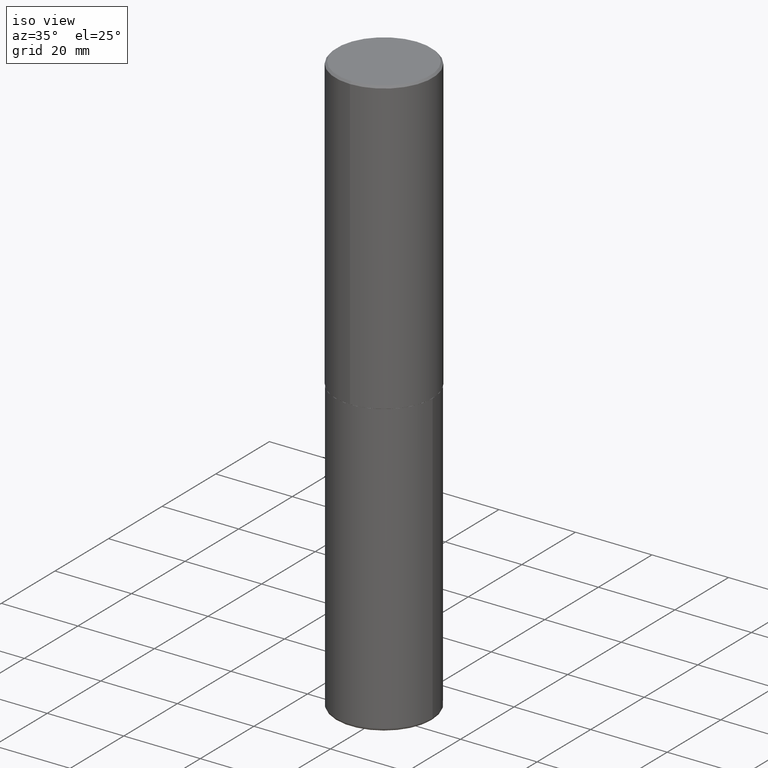
[diagram: clean part render]
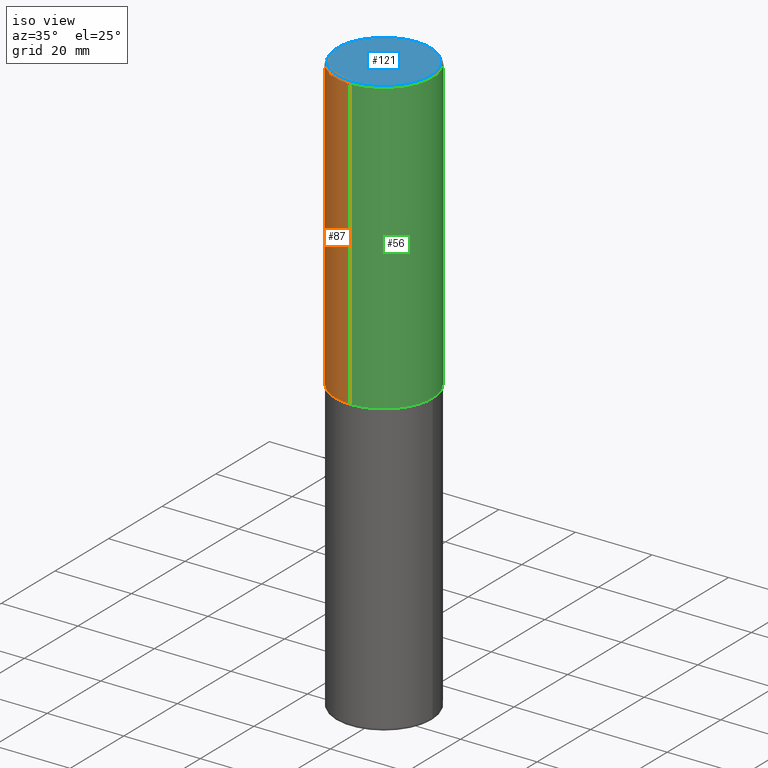
[diagram: same view with three faces highlighted in distinct colors, each labeled with its STEP entity id]
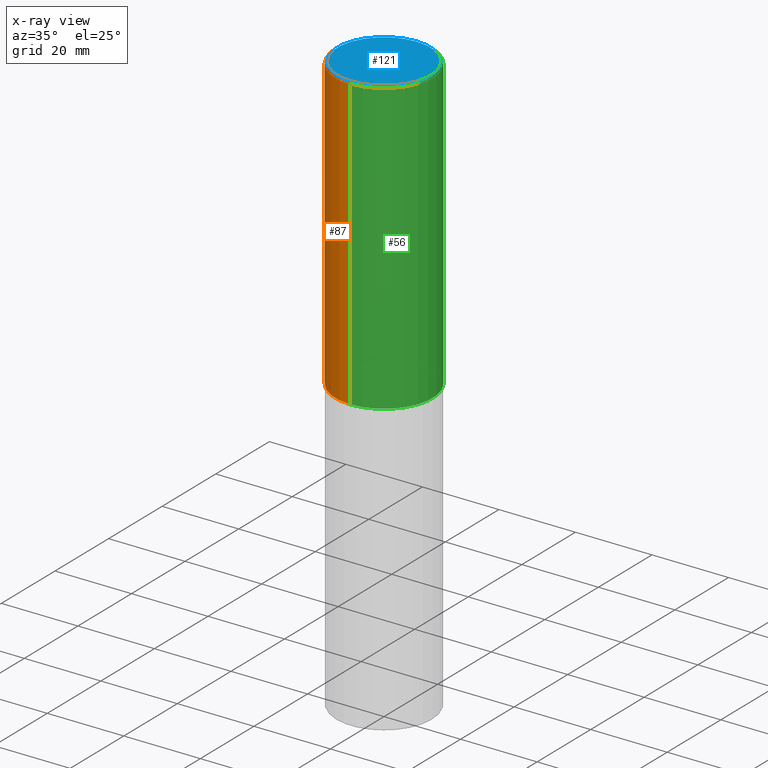
[diagram: x-ray of the same camera — body ghosted, the three highlighted faces saturated]
A machine part, iso view with three faces highlighted in distinct colors.
The next image is the same camera in x-ray (body ghosted, the three faces saturated) — at least one of them is partly hidden behind the body in this view.
Their STEP definitions:

[orange] entity #87 — the highlighted cylindrical surface (partial cylindrical patch) has radius 12.7 mm, axis along (-0, 0, 1).
#27 = EDGE_CURVE ( 'NONE', #339, #404, #408, .T. ) ;
#29 = DIRECTION ( 'NONE',  ( -2.444898033699711931E-29, 3.492298717528626385E-15, 1.000000000000000000 ) ) ;
#37 = CARTESIAN_POINT ( 'NONE',  ( -3.430248998885764992E-15, -0.5000000000000001110, -0.01999999999999835937 ) ) ;
#58 = EDGE_CURVE ( 'NONE', #237, #214, #188, .T. ) ;
#73 = ORIENTED_EDGE ( 'NONE', *, *, #276, .F. ) ;
#80 = ORIENTED_EDGE ( 'NONE', *, *, #27, .F. ) ;
#87 = ADVANCED_FACE ( 'NONE', ( #154 ), #288, .T. ) ;
#96 = EDGE_CURVE ( 'NONE', #339, #237, #305, .T. ) ;
#99 = DIRECTION ( 'NONE',  ( -2.444898033699712212E-29, 3.492298717528625990E-15, 1.000000000000000000 ) ) ;
#106 = EDGE_LOOP ( 'NONE', ( #80, #208, #169, #73 ) ) ;
#116 = AXIS2_PLACEMENT_3D ( 'NONE', #187, #251, #284 ) ;
#119 = DIRECTION ( 'NONE',  ( -6.982962677686265922E-15, -1.000000000000000000, 3.492298717528625990E-15 ) ) ;
#123 = DIRECTION ( 'NONE',  ( -2.444898033699711931E-29, 3.492298717528626385E-15, 1.000000000000000000 ) ) ;
#149 = DIRECTION ( 'NONE',  ( -2.444898033699712212E-29, 3.492298717528625990E-15, 1.000000000000000000 ) ) ;
#154 = FACE_OUTER_BOUND ( 'NONE', #106, .T. ) ;
#169 = ORIENTED_EDGE ( 'NONE', *, *, #58, .T. ) ;
#178 = CARTESIAN_POINT ( 'NONE',  ( 3.491481338843133355E-15, 0.4999999999999999445, -0.02000000000000185310 ) ) ;
#181 = CIRCLE ( 'NONE', #186, 0.5000000000000000000 ) ;
#186 = AXIS2_PLACEMENT_3D ( 'NONE', #411, #99, #324 ) ;
#187 = CARTESIAN_POINT ( 'NONE',  ( 7.332249203065438921E-29, -1.047340385386834930E-14, -2.999000000000000554 ) ) ;
#188 = LINE ( 'NONE', #322, #311 ) ;
#208 = ORIENTED_EDGE ( 'NONE', *, *, #96, .T. ) ;
#214 = VERTEX_POINT ( 'NONE', #37 ) ;
#216 = CARTESIAN_POINT ( 'NONE',  ( 0.000000000000000000, 0.000000000000000000, 0.000000000000000000 ) ) ;
#222 = CARTESIAN_POINT ( 'NONE',  ( 3.552713678800539584E-15, 0.4999999999999898970, -2.999000000000001886 ) ) ;
#237 = VERTEX_POINT ( 'NONE', #262 ) ;
#251 = DIRECTION ( 'NONE',  ( -2.444898033699712212E-29, 3.492298717528625990E-15, 1.000000000000000000 ) ) ;
#262 = CARTESIAN_POINT ( 'NONE',  ( -3.491481338843061569E-15, -0.5000000000000107692, -2.998999999999998778 ) ) ;
#276 = EDGE_CURVE ( 'NONE', #404, #214, #181, .T. ) ;
#284 = DIRECTION ( 'NONE',  ( -6.982962677686266711E-15, -1.000000000000000000, 3.278217592397114284E-15 ) ) ;
#288 = CYLINDRICAL_SURFACE ( 'NONE', #370, 0.5000000000000001110 ) ;
#305 = CIRCLE ( 'NONE', #116, 0.5000000000000002220 ) ;
#311 = VECTOR ( 'NONE', #29, 39.37007874015748143 ) ;
#320 = CARTESIAN_POINT ( 'NONE',  ( 3.552713678800501718E-15, 0.5000000000000001110, -1.746149358764313390E-15 ) ) ;
#322 = CARTESIAN_POINT ( 'NONE',  ( -3.491481338843133750E-15, -0.5000000000000001110, 1.746149358764313390E-15 ) ) ;
#324 = DIRECTION ( 'NONE',  ( -6.982962677686265922E-15, -1.000000000000000000, 3.491643216902136408E-15 ) ) ;
#339 = VERTEX_POINT ( 'NONE', #222 ) ;
#370 = AXIS2_PLACEMENT_3D ( 'NONE', #216, #149, #119 ) ;
#376 = VECTOR ( 'NONE', #123, 39.37007874015748143 ) ;
#404 = VERTEX_POINT ( 'NONE', #178 ) ;
#408 = LINE ( 'NONE', #320, #376 ) ;
#411 = CARTESIAN_POINT ( 'NONE',  ( 4.889796067399450837E-31, -6.984597435057287381E-17, -0.02000000000000010797 ) ) ;

[blue] entity #121 — the highlighted planar face has unit normal (0, -0, -1).
#21 = DIRECTION ( 'NONE',  ( 6.982962677686265922E-15, 1.000000000000000000, -3.492298717528626385E-15 ) ) ;
#33 = DIRECTION ( 'NONE',  ( -6.982962677686265922E-15, -1.000000000000000000, 3.492298717528625990E-15 ) ) ;
#50 = EDGE_CURVE ( 'NONE', #136, #209, #231, .T. ) ;
#51 = FACE_OUTER_BOUND ( 'NONE', #78, .T. ) ;
#57 = DIRECTION ( 'NONE',  ( 2.444898033699711371E-29, -3.492298717528626385E-15, -1.000000000000000000 ) ) ;
#78 = EDGE_LOOP ( 'NONE', ( #240, #310 ) ) ;
#82 = DIRECTION ( 'NONE',  ( -2.444898033699712212E-29, 3.492298717528625990E-15, 1.000000000000000000 ) ) ;
#121 = ADVANCED_FACE ( 'NONE', ( #51 ), #183, .F. ) ;
#136 = VERTEX_POINT ( 'NONE', #302 ) ;
#144 = CIRCLE ( 'NONE', #306, 0.4799999999999999267 ) ;
#182 = DIRECTION ( 'NONE',  ( -6.982962677686265922E-15, -1.000000000000000000, 3.492298717528625990E-15 ) ) ;
#183 = PLANE ( 'NONE',  #224 ) ;
#196 = CARTESIAN_POINT ( 'NONE',  ( -2.514251026725007597E-45, 3.591362713352002573E-31, 1.028366415314403880E-16 ) ) ;
#209 = VERTEX_POINT ( 'NONE', #264 ) ;
#224 = AXIS2_PLACEMENT_3D ( 'NONE', #315, #57, #21 ) ;
#231 = CIRCLE ( 'NONE', #316, 0.4799999999999999267 ) ;
#240 = ORIENTED_EDGE ( 'NONE', *, *, #349, .T. ) ;
#264 = CARTESIAN_POINT ( 'NONE',  ( 3.421651712066270057E-15, 0.4799999999999999267, -1.573466742882299844E-15 ) ) ;
#302 = CARTESIAN_POINT ( 'NONE',  ( -3.361644018908049661E-15, -0.4799999999999999267, 1.779140025945180744E-15 ) ) ;
#306 = AXIS2_PLACEMENT_3D ( 'NONE', #196, #328, #33 ) ;
#310 = ORIENTED_EDGE ( 'NONE', *, *, #50, .T. ) ;
#315 = CARTESIAN_POINT ( 'NONE',  ( 3.351822085289407153E-15, 0.4799999999999999267, -1.624885063648019971E-15 ) ) ;
#316 = AXIS2_PLACEMENT_3D ( 'NONE', #317, #82, #182 ) ;
#317 = CARTESIAN_POINT ( 'NONE',  ( -2.514251026725007597E-45, 3.591362713352002573E-31, 1.028366415314403880E-16 ) ) ;
#328 = DIRECTION ( 'NONE',  ( -2.444898033699712212E-29, 3.492298717528625990E-15, 1.000000000000000000 ) ) ;
#349 = EDGE_CURVE ( 'NONE', #209, #136, #144, .T. ) ;

[green] entity #56 — the highlighted cylindrical surface (partial cylindrical patch) has radius 12.7 mm, axis along (-0, 0, 1).
#13 = CARTESIAN_POINT ( 'NONE',  ( 4.889796067399450837E-31, -6.984597435057287381E-17, -0.02000000000000010797 ) ) ;
#15 = CIRCLE ( 'NONE', #111, 0.5000000000000002220 ) ;
#24 = CYLINDRICAL_SURFACE ( 'NONE', #67, 0.5000000000000001110 ) ;
#27 = EDGE_CURVE ( 'NONE', #339, #404, #408, .T. ) ;
#29 = DIRECTION ( 'NONE',  ( -2.444898033699711931E-29, 3.492298717528626385E-15, 1.000000000000000000 ) ) ;
#34 = EDGE_CURVE ( 'NONE', #237, #339, #15, .T. ) ;
#37 = CARTESIAN_POINT ( 'NONE',  ( -3.430248998885764992E-15, -0.5000000000000001110, -0.01999999999999835937 ) ) ;
#56 = ADVANCED_FACE ( 'NONE', ( #92 ), #24, .T. ) ;
#58 = EDGE_CURVE ( 'NONE', #237, #214, #188, .T. ) ;
#59 = DIRECTION ( 'NONE',  ( -2.444898033699712212E-29, 3.492298717528625990E-15, 1.000000000000000000 ) ) ;
#67 = AXIS2_PLACEMENT_3D ( 'NONE', #213, #59, #218 ) ;
#88 = DIRECTION ( 'NONE',  ( -2.444898033699712212E-29, 3.492298717528625990E-15, 1.000000000000000000 ) ) ;
#89 = EDGE_LOOP ( 'NONE', ( #334, #259, #204, #282 ) ) ;
#92 = FACE_OUTER_BOUND ( 'NONE', #89, .T. ) ;
#111 = AXIS2_PLACEMENT_3D ( 'NONE', #405, #88, #254 ) ;
#123 = DIRECTION ( 'NONE',  ( -2.444898033699711931E-29, 3.492298717528626385E-15, 1.000000000000000000 ) ) ;
#140 = DIRECTION ( 'NONE',  ( -2.444898033699712212E-29, 3.492298717528625990E-15, 1.000000000000000000 ) ) ;
#178 = CARTESIAN_POINT ( 'NONE',  ( 3.491481338843133355E-15, 0.4999999999999999445, -0.02000000000000185310 ) ) ;
#188 = LINE ( 'NONE', #322, #311 ) ;
#204 = ORIENTED_EDGE ( 'NONE', *, *, #417, .F. ) ;
#213 = CARTESIAN_POINT ( 'NONE',  ( 0.000000000000000000, 0.000000000000000000, 0.000000000000000000 ) ) ;
#214 = VERTEX_POINT ( 'NONE', #37 ) ;
#218 = DIRECTION ( 'NONE',  ( -6.982962677686265922E-15, -1.000000000000000000, 3.492298717528625990E-15 ) ) ;
#222 = CARTESIAN_POINT ( 'NONE',  ( 3.552713678800539584E-15, 0.4999999999999898970, -2.999000000000001886 ) ) ;
#226 = CIRCLE ( 'NONE', #325, 0.5000000000000000000 ) ;
#237 = VERTEX_POINT ( 'NONE', #262 ) ;
#254 = DIRECTION ( 'NONE',  ( -6.982962677686266711E-15, -1.000000000000000000, 3.278217592397114284E-15 ) ) ;
#259 = ORIENTED_EDGE ( 'NONE', *, *, #27, .T. ) ;
#262 = CARTESIAN_POINT ( 'NONE',  ( -3.491481338843061569E-15, -0.5000000000000107692, -2.998999999999998778 ) ) ;
#274 = DIRECTION ( 'NONE',  ( -6.982962677686265922E-15, -1.000000000000000000, 3.491643216902136408E-15 ) ) ;
#282 = ORIENTED_EDGE ( 'NONE', *, *, #58, .F. ) ;
#311 = VECTOR ( 'NONE', #29, 39.37007874015748143 ) ;
#320 = CARTESIAN_POINT ( 'NONE',  ( 3.552713678800501718E-15, 0.5000000000000001110, -1.746149358764313390E-15 ) ) ;
#322 = CARTESIAN_POINT ( 'NONE',  ( -3.491481338843133750E-15, -0.5000000000000001110, 1.746149358764313390E-15 ) ) ;
#325 = AXIS2_PLACEMENT_3D ( 'NONE', #13, #140, #274 ) ;
#334 = ORIENTED_EDGE ( 'NONE', *, *, #34, .T. ) ;
#339 = VERTEX_POINT ( 'NONE', #222 ) ;
#376 = VECTOR ( 'NONE', #123, 39.37007874015748143 ) ;
#404 = VERTEX_POINT ( 'NONE', #178 ) ;
#405 = CARTESIAN_POINT ( 'NONE',  ( 7.332249203065438921E-29, -1.047340385386834930E-14, -2.999000000000000554 ) ) ;
#408 = LINE ( 'NONE', #320, #376 ) ;
#417 = EDGE_CURVE ( 'NONE', #214, #404, #226, .T. ) ;